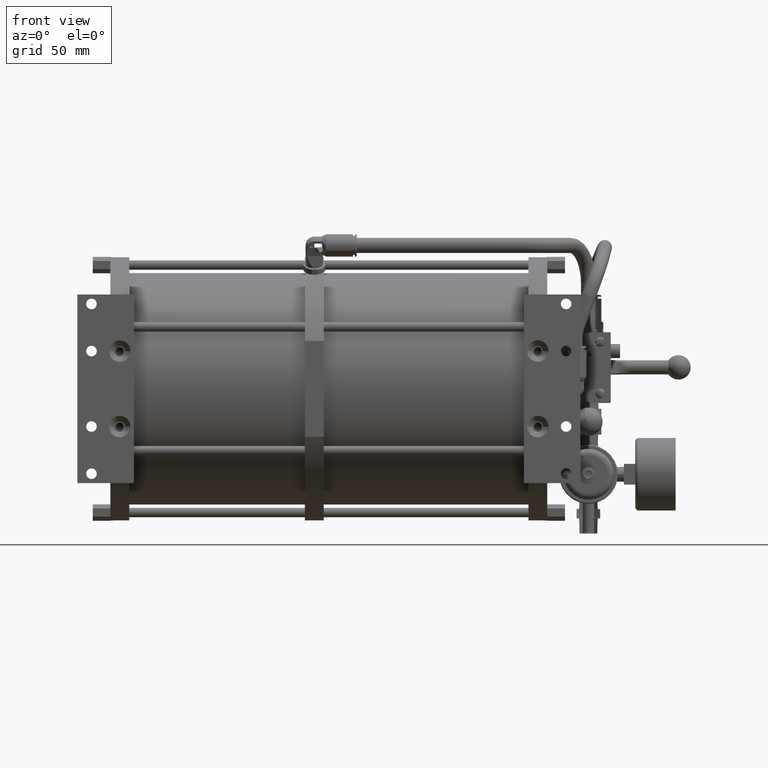
[diagram: clean part render]
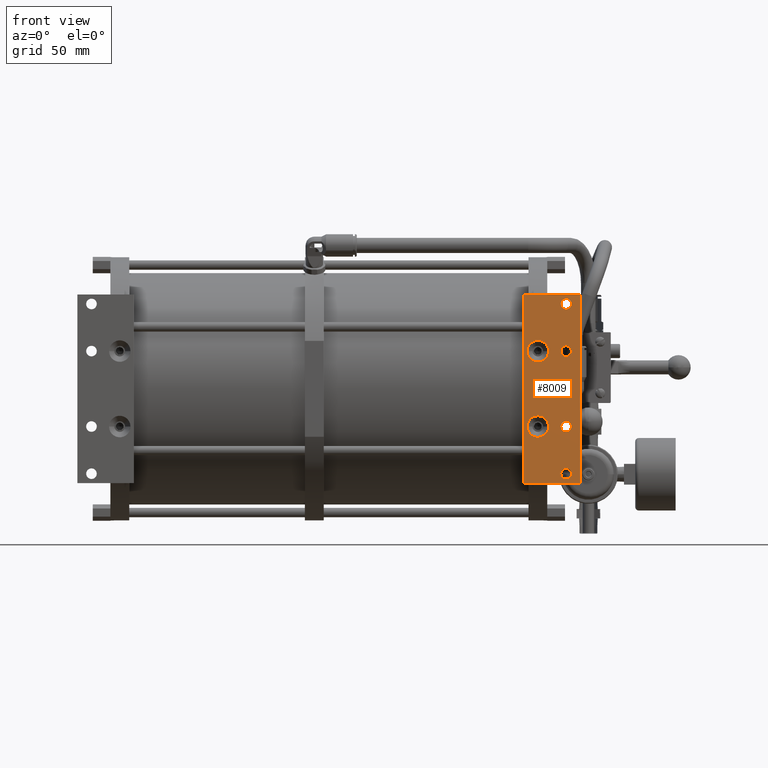
[diagram: same view with one face highlighted and labeled with its STEP entity id]
A machine part, front view. The second image highlights one B-rep face of the part: STEP entity #8009.
In plain terms, the highlighted planar face has unit normal (0, 1, 0).
Its self-contained STEP definition (entity closure, byte-faithful):
#2150=DIRECTION('',(1.E0,0.E0,0.E0));
#2151=VECTOR('',#2150,3.81E1);
#2152=CARTESIAN_POINT('',(1.346327E2,0.E0,0.E0));
#2153=LINE('',#2152,#2151);
#2158=CARTESIAN_POINT('',(1.632077E2,1.709743457923E-14,-6.35E0));
#2159=DIRECTION('',(0.E0,-1.E0,0.E0));
#2160=DIRECTION('',(-1.E0,0.E0,0.E0));
#2161=AXIS2_PLACEMENT_3D('',#2158,#2159,#2160);
#2163=CARTESIAN_POINT('',(1.632077E2,1.709743457923E-14,-6.35E0));
#2164=DIRECTION('',(0.E0,-1.E0,0.E0));
#2165=DIRECTION('',(1.E0,0.E0,0.E0));
#2166=AXIS2_PLACEMENT_3D('',#2163,#2164,#2165);
#2168=CARTESIAN_POINT('',(1.632077E2,1.709743457923E-14,-3.81E1));
#2169=DIRECTION('',(0.E0,-1.E0,0.E0));
#2170=DIRECTION('',(-1.E0,0.E0,0.E0));
#2171=AXIS2_PLACEMENT_3D('',#2168,#2169,#2170);
#2173=CARTESIAN_POINT('',(1.632077E2,1.709743457923E-14,-3.81E1));
#2174=DIRECTION('',(0.E0,-1.E0,0.E0));
#2175=DIRECTION('',(1.E0,0.E0,0.E0));
#2176=AXIS2_PLACEMENT_3D('',#2173,#2174,#2175);
#2178=CARTESIAN_POINT('',(1.632077E2,1.709743457923E-14,-8.89E1));
#2179=DIRECTION('',(0.E0,-1.E0,0.E0));
#2180=DIRECTION('',(-1.E0,0.E0,0.E0));
#2181=AXIS2_PLACEMENT_3D('',#2178,#2179,#2180);
#2183=CARTESIAN_POINT('',(1.632077E2,1.709743457923E-14,-8.89E1));
#2184=DIRECTION('',(0.E0,-1.E0,0.E0));
#2185=DIRECTION('',(1.E0,0.E0,0.E0));
#2186=AXIS2_PLACEMENT_3D('',#2183,#2184,#2185);
#2188=CARTESIAN_POINT('',(1.632077E2,1.709743457923E-14,-1.2065E2));
#2189=DIRECTION('',(0.E0,-1.E0,0.E0));
#2190=DIRECTION('',(-1.E0,0.E0,1.194624489187E-14));
#2191=AXIS2_PLACEMENT_3D('',#2188,#2189,#2190);
#2193=CARTESIAN_POINT('',(1.632077E2,1.709743457923E-14,-1.2065E2));
#2194=DIRECTION('',(0.E0,-1.E0,0.E0));
#2195=DIRECTION('',(1.E0,0.E0,1.194624489187E-14));
#2196=AXIS2_PLACEMENT_3D('',#2193,#2194,#2195);
#2198=CARTESIAN_POINT('',(1.441577E2,-1.465494392505E-13,-3.81E1));
#2199=DIRECTION('',(0.E0,-1.E0,0.E0));
#2200=DIRECTION('',(-1.E0,0.E0,0.E0));
#2201=AXIS2_PLACEMENT_3D('',#2198,#2199,#2200);
#2203=CARTESIAN_POINT('',(1.441577E2,-1.483257960899E-13,-3.81E1));
#2204=DIRECTION('',(0.E0,-1.E0,0.E0));
#2205=DIRECTION('',(1.E0,0.E0,0.E0));
#2206=AXIS2_PLACEMENT_3D('',#2203,#2204,#2205);
#2208=CARTESIAN_POINT('',(1.441577E2,-1.483257960899E-13,-8.89E1));
#2209=DIRECTION('',(0.E0,-1.E0,0.E0));
#2210=DIRECTION('',(-1.E0,0.E0,0.E0));
#2211=AXIS2_PLACEMENT_3D('',#2208,#2209,#2210);
#2213=CARTESIAN_POINT('',(1.441577E2,-1.465494392505E-13,-8.89E1));
#2214=DIRECTION('',(0.E0,-1.E0,0.E0));
#2215=DIRECTION('',(1.E0,0.E0,0.E0));
#2216=AXIS2_PLACEMENT_3D('',#2213,#2214,#2215);
#2218=DIRECTION('',(0.E0,0.E0,-1.E0));
#2219=VECTOR('',#2218,1.27E2);
#2220=CARTESIAN_POINT('',(1.727327E2,0.E0,0.E0));
#2221=LINE('',#2220,#2219);
#2234=DIRECTION('',(-1.E0,0.E0,0.E0));
#2235=VECTOR('',#2234,3.81E1);
#2236=CARTESIAN_POINT('',(1.727327E2,0.E0,-1.27E2));
#2237=LINE('',#2236,#2235);
#2246=DIRECTION('',(0.E0,0.E0,1.E0));
#2247=VECTOR('',#2246,1.27E2);
#2248=CARTESIAN_POINT('',(1.346327E2,0.E0,-1.27E2));
#2249=LINE('',#2248,#2247);
#4643=CARTESIAN_POINT('',(1.346327E2,0.E0,0.E0));
#4644=CARTESIAN_POINT('',(1.727327E2,0.E0,0.E0));
#4645=VERTEX_POINT('',#4643);
#4646=VERTEX_POINT('',#4644);
#4647=CARTESIAN_POINT('',(1.346327E2,0.E0,-1.27E2));
#4648=VERTEX_POINT('',#4647);
#4649=CARTESIAN_POINT('',(1.727327E2,0.E0,-1.27E2));
#4650=VERTEX_POINT('',#4649);
#4651=CARTESIAN_POINT('',(1.59639E2,1.709743457923E-14,-6.35E0));
#4652=CARTESIAN_POINT('',(1.667764E2,1.709743457923E-14,-6.35E0));
#4653=VERTEX_POINT('',#4651);
#4654=VERTEX_POINT('',#4652);
#4655=CARTESIAN_POINT('',(1.59639E2,1.709743457923E-14,-3.81E1));
#4656=CARTESIAN_POINT('',(1.667764E2,1.709743457923E-14,-3.81E1));
#4657=VERTEX_POINT('',#4655);
#4658=VERTEX_POINT('',#4656);
#4659=CARTESIAN_POINT('',(1.59639E2,1.709743457923E-14,-8.89E1));
#4660=CARTESIAN_POINT('',(1.667764E2,1.709743457923E-14,-8.89E1));
#4661=VERTEX_POINT('',#4659);
#4662=VERTEX_POINT('',#4660);
#4663=CARTESIAN_POINT('',(1.59639E2,1.709743457923E-14,-1.2065E2));
#4664=CARTESIAN_POINT('',(1.667764E2,1.709743457923E-14,-1.2065E2));
#4665=VERTEX_POINT('',#4663);
#4666=VERTEX_POINT('',#4664);
#4667=CARTESIAN_POINT('',(1.369187E2,-1.465494392505E-13,-3.81E1));
#4668=CARTESIAN_POINT('',(1.513967E2,-1.465494392505E-13,-3.81E1));
#4669=VERTEX_POINT('',#4667);
#4670=VERTEX_POINT('',#4668);
#4671=CARTESIAN_POINT('',(1.369187E2,-1.483257960899E-13,-8.89E1));
#4672=CARTESIAN_POINT('',(1.513967E2,-1.483257960899E-13,-8.89E1));
#4673=VERTEX_POINT('',#4671);
#4674=VERTEX_POINT('',#4672);
#7959=CARTESIAN_POINT('',(1.536827E2,0.E0,-6.35E1));
#7960=DIRECTION('',(0.E0,1.E0,0.E0));
#7961=DIRECTION('',(-1.E0,0.E0,0.E0));
#7962=AXIS2_PLACEMENT_3D('',#7959,#7960,#7961);
#7963=PLANE('',#7962);
#7964=ORIENTED_EDGE('',*,*,#7949,.T.);
#7966=ORIENTED_EDGE('',*,*,#7965,.T.);
#7968=ORIENTED_EDGE('',*,*,#7967,.T.);
#7970=ORIENTED_EDGE('',*,*,#7969,.T.);
#7971=EDGE_LOOP('',(#7964,#7966,#7968,#7970));
#7972=FACE_OUTER_BOUND('',#7971,.F.);
#7974=ORIENTED_EDGE('',*,*,#7973,.T.);
#7976=ORIENTED_EDGE('',*,*,#7975,.T.);
#7977=EDGE_LOOP('',(#7974,#7976));
#7978=FACE_BOUND('',#7977,.F.);
#7980=ORIENTED_EDGE('',*,*,#7979,.T.);
#7982=ORIENTED_EDGE('',*,*,#7981,.T.);
#7983=EDGE_LOOP('',(#7980,#7982));
#7984=FACE_BOUND('',#7983,.F.);
#7986=ORIENTED_EDGE('',*,*,#7985,.T.);
#7988=ORIENTED_EDGE('',*,*,#7987,.T.);
#7989=EDGE_LOOP('',(#7986,#7988));
#7990=FACE_BOUND('',#7989,.F.);
#7992=ORIENTED_EDGE('',*,*,#7991,.T.);
#7994=ORIENTED_EDGE('',*,*,#7993,.T.);
#7995=EDGE_LOOP('',(#7992,#7994));
#7996=FACE_BOUND('',#7995,.F.);
#7998=ORIENTED_EDGE('',*,*,#7997,.T.);
#8000=ORIENTED_EDGE('',*,*,#7999,.T.);
#8001=EDGE_LOOP('',(#7998,#8000));
#8002=FACE_BOUND('',#8001,.F.);
#8004=ORIENTED_EDGE('',*,*,#8003,.T.);
#8006=ORIENTED_EDGE('',*,*,#8005,.T.);
#8007=EDGE_LOOP('',(#8004,#8006));
#8008=FACE_BOUND('',#8007,.F.);
#8009=ADVANCED_FACE('',(#7972,#7978,#7984,#7990,#7996,#8002,#8008),#7963,.F.);
#2162=CIRCLE('',#2161,3.5687E0);
#2167=CIRCLE('',#2166,3.5687E0);
#2172=CIRCLE('',#2171,3.5687E0);
#2177=CIRCLE('',#2176,3.5687E0);
#2182=CIRCLE('',#2181,3.5687E0);
#2187=CIRCLE('',#2186,3.5687E0);
#2192=CIRCLE('',#2191,3.5687E0);
#2197=CIRCLE('',#2196,3.5687E0);
#2202=CIRCLE('',#2201,7.239E0);
#2207=CIRCLE('',#2206,7.239E0);
#2212=CIRCLE('',#2211,7.239E0);
#2217=CIRCLE('',#2216,7.239E0);
#7949=EDGE_CURVE('',#4645,#4646,#2153,.T.);
#7965=EDGE_CURVE('',#4646,#4650,#2221,.T.);
#7967=EDGE_CURVE('',#4650,#4648,#2237,.T.);
#7969=EDGE_CURVE('',#4648,#4645,#2249,.T.);
#7973=EDGE_CURVE('',#4653,#4654,#2162,.T.);
#7975=EDGE_CURVE('',#4654,#4653,#2167,.T.);
#7979=EDGE_CURVE('',#4657,#4658,#2172,.T.);
#7981=EDGE_CURVE('',#4658,#4657,#2177,.T.);
#7985=EDGE_CURVE('',#4661,#4662,#2182,.T.);
#7987=EDGE_CURVE('',#4662,#4661,#2187,.T.);
#7991=EDGE_CURVE('',#4665,#4666,#2192,.T.);
#7993=EDGE_CURVE('',#4666,#4665,#2197,.T.);
#7997=EDGE_CURVE('',#4669,#4670,#2202,.T.);
#7999=EDGE_CURVE('',#4670,#4669,#2207,.T.);
#8003=EDGE_CURVE('',#4673,#4674,#2212,.T.);
#8005=EDGE_CURVE('',#4674,#4673,#2217,.T.);